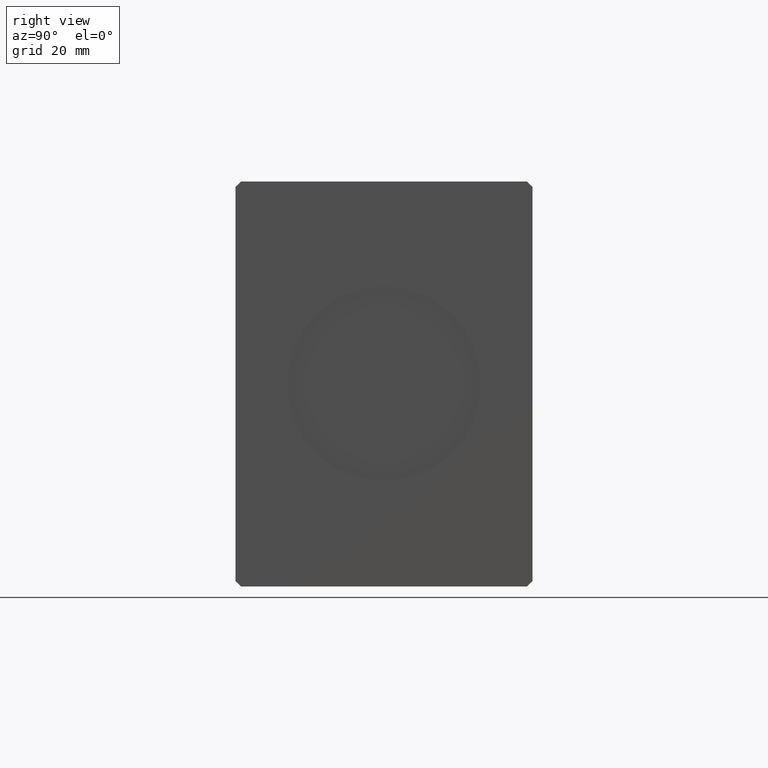
[diagram: clean part render]
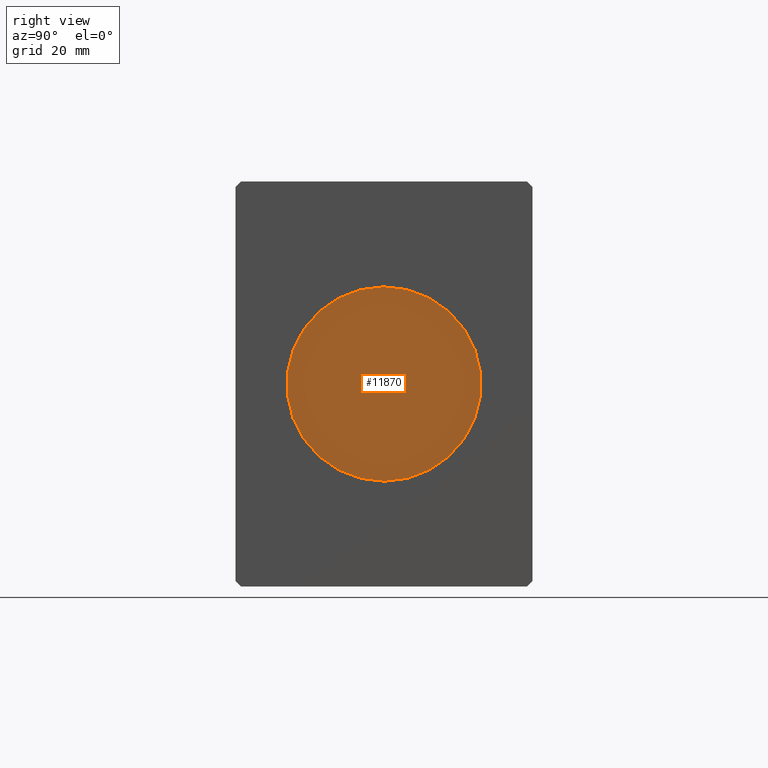
[diagram: same view with one face highlighted and labeled with its STEP entity id]
A machine part, right view. The second image highlights one B-rep face of the part: STEP entity #11870.
In plain terms, the highlighted planar face has unit normal (1, 0, 0).
Its self-contained STEP definition (entity closure, byte-faithful):
#1573 = VERTEX_POINT ( 'NONE', #26632 ) ;
#2890 = CARTESIAN_POINT ( 'NONE',  ( 84.79999999999999716, 0.000000000000000000, 0.000000000000000000 ) ) ;
#3034 = CARTESIAN_POINT ( 'NONE',  ( 84.79999999999999716, 0.000000000000000000, 0.000000000000000000 ) ) ;
#8560 = ORIENTED_EDGE ( 'NONE', *, *, #16295, .T. ) ;
#10764 = DIRECTION ( 'NONE',  ( 0.000000000000000000, 0.000000000000000000, -1.000000000000000000 ) ) ;
#11870 = ADVANCED_FACE ( 'NONE', ( #35086 ), #16702, .T. ) ;
#14778 = EDGE_LOOP ( 'NONE', ( #22283, #8560 ) ) ;
#16295 = EDGE_CURVE ( 'NONE', #1573, #27219, #23118, .T. ) ;
#16702 = PLANE ( 'NONE',  #31426 ) ;
#19564 = EDGE_CURVE ( 'NONE', #27219, #1573, #20777, .T. ) ;
#20138 = AXIS2_PLACEMENT_3D ( 'NONE', #3034, #34717, #21847 ) ;
#20777 = CIRCLE ( 'NONE', #20138, 18.00000000000000000 ) ;
#21847 = DIRECTION ( 'NONE',  ( 0.000000000000000000, 0.000000000000000000, -1.000000000000000000 ) ) ;
#22283 = ORIENTED_EDGE ( 'NONE', *, *, #19564, .T. ) ;
#23030 = DIRECTION ( 'NONE',  ( 1.000000000000000000, 0.000000000000000000, 0.000000000000000000 ) ) ;
#23118 = CIRCLE ( 'NONE', #35513, 18.00000000000000000 ) ;
#26180 = CARTESIAN_POINT ( 'NONE',  ( 84.79999999999999716, 0.000000000000000000, -18.00000000000000000 ) ) ;
#26632 = CARTESIAN_POINT ( 'NONE',  ( 84.79999999999999716, 2.204364238465235428E-15, 18.00000000000000000 ) ) ;
#27219 = VERTEX_POINT ( 'NONE', #26180 ) ;
#27832 = DIRECTION ( 'NONE',  ( 0.000000000000000000, 0.000000000000000000, -1.000000000000000000 ) ) ;
#31426 = AXIS2_PLACEMENT_3D ( 'NONE', #38162, #23030, #10764 ) ;
#33963 = DIRECTION ( 'NONE',  ( 1.000000000000000000, 0.000000000000000000, 0.000000000000000000 ) ) ;
#34717 = DIRECTION ( 'NONE',  ( 1.000000000000000000, 0.000000000000000000, 0.000000000000000000 ) ) ;
#35086 = FACE_OUTER_BOUND ( 'NONE', #14778, .T. ) ;
#35513 = AXIS2_PLACEMENT_3D ( 'NONE', #2890, #33963, #27832 ) ;
#38162 = CARTESIAN_POINT ( 'NONE',  ( 84.79999999999999716, 0.000000000000000000, 0.000000000000000000 ) ) ;